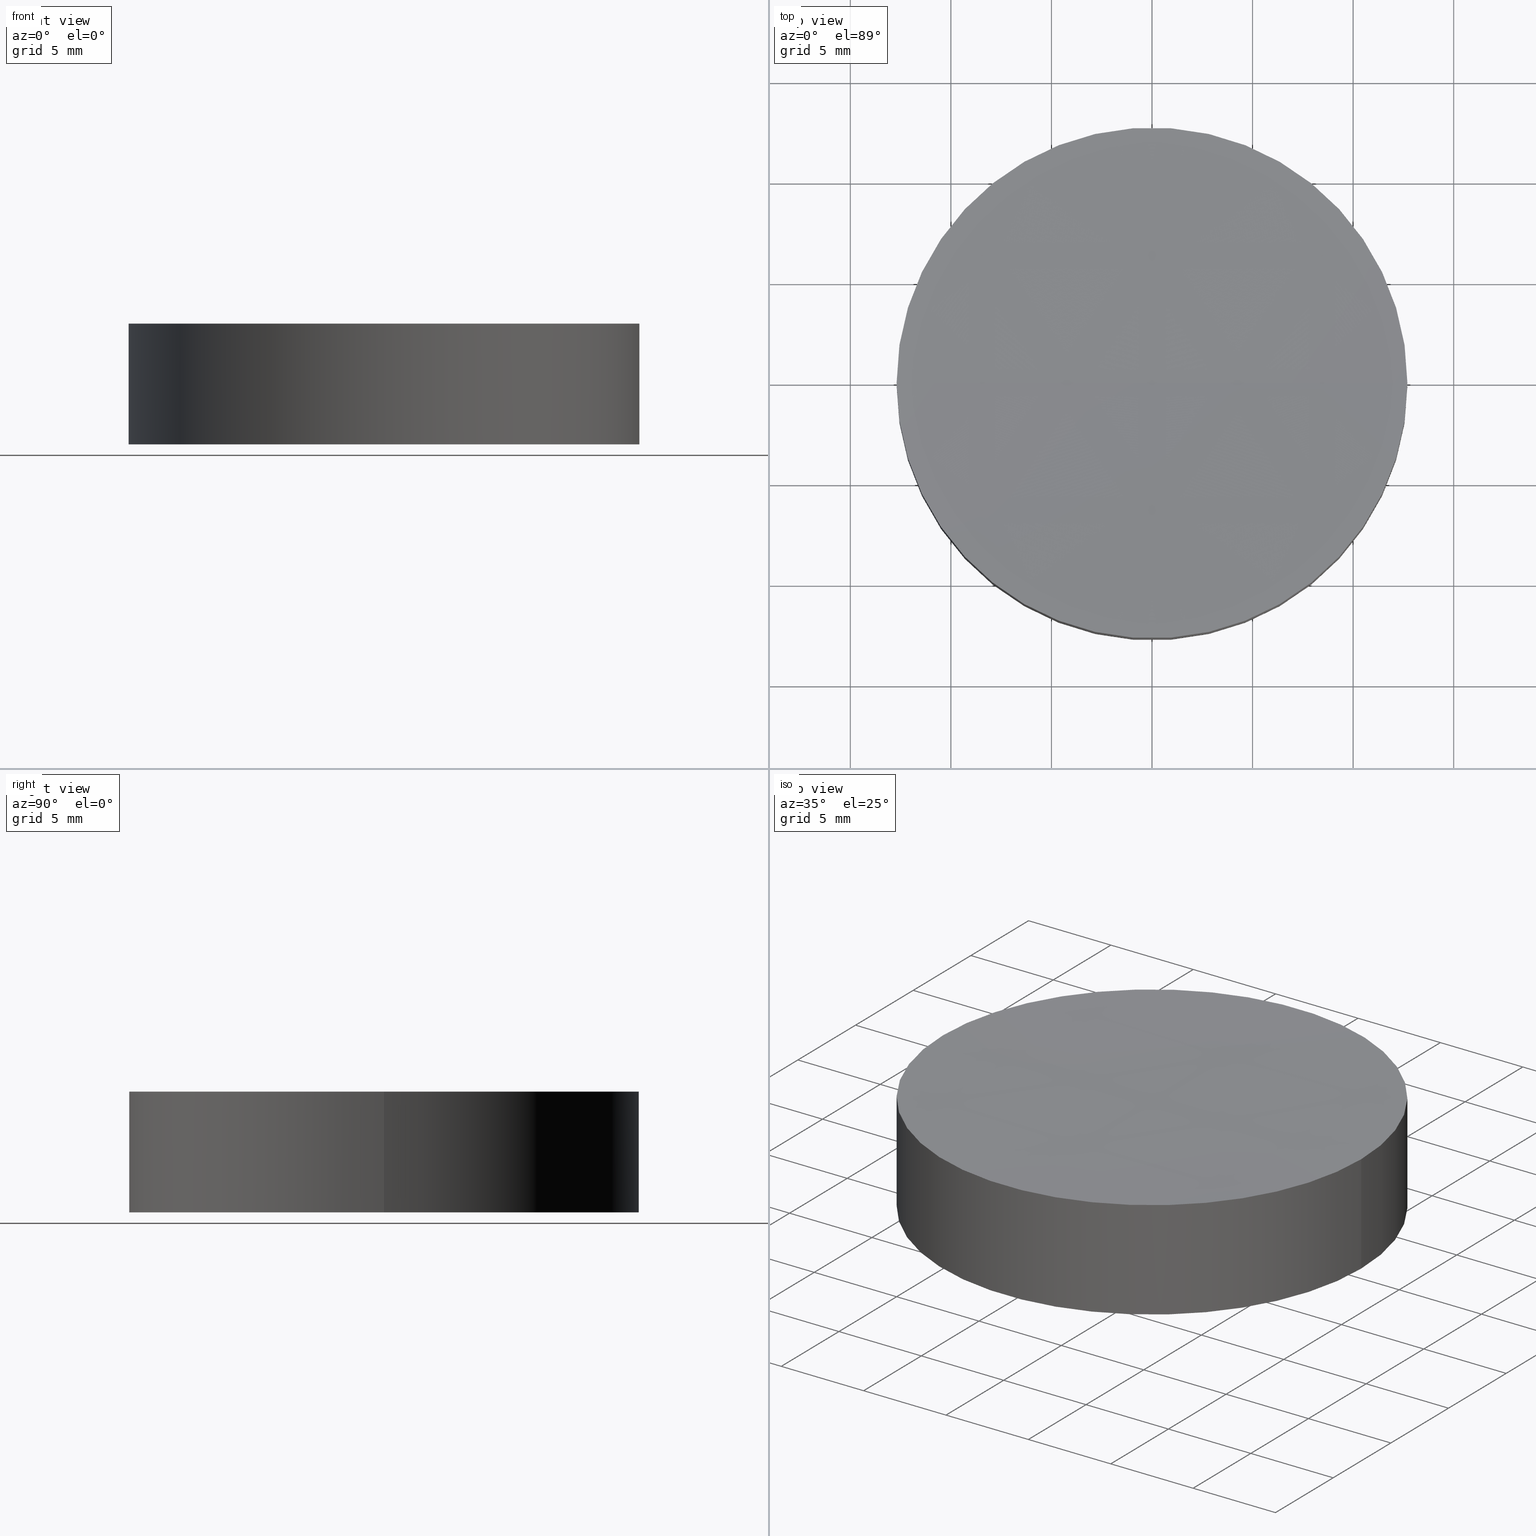
[diagram: canonical four-view strip — front | top / right | iso, engineering-drawing reading convention]
A machine part, canonical four-view strip (front | top / right | iso — engineering-drawing reading convention). The complete STEP part file that produces these views, byte-faithful:
ISO-10303-21;
HEADER;
FILE_DESCRIPTION (( 'STEP AP203' ),
    '1' );
FILE_NAME ('010-0211E_N-BK7_PCV_window.STEP',
    '2021-02-25T11:14:06',
    ( '' ),
    ( '' ),
    'SwSTEP 2.0',
    'SolidWorks 2019',
    '' );
FILE_SCHEMA (( 'CONFIG_CONTROL_DESIGN' ));
ENDSEC;

DATA;
#1 = VECTOR ( 'NONE', #40, 1000.000000000000000 ) ;
#2 = ORIENTED_EDGE ( 'NONE', *, *, #116, .F. ) ;
#3 = EDGE_LOOP ( 'NONE', ( #187, #109, #131, #34 ) ) ;
#4 = EDGE_CURVE ( 'NONE', #97, #45, #135, .T. ) ;
#5 = FACE_OUTER_BOUND ( 'NONE', #110, .T. ) ;
#6 = CARTESIAN_POINT ( 'NONE',  ( -12.69999999999999929, 0.000000000000000000, 0.000000000000000000 ) ) ;
#7 = CC_DESIGN_APPROVAL ( #161, ( #122 ) ) ;
#8 = FACE_OUTER_BOUND ( 'NONE', #3, .T. ) ;
#9 = CARTESIAN_POINT ( 'NONE',  ( 4.510281037539698445E-14, 0.000000000000000000, 6.000000000000005329 ) ) ;
#10 = APPROVAL_ROLE ( '' ) ;
#11 = DESIGN_CONTEXT ( 'detailed design', #54, 'design' ) ;
#12 = PERSON_AND_ORGANIZATION_ROLE ( 'design_supplier' ) ;
#13 = CALENDAR_DATE ( 2021, 25, 2 ) ;
#14 = SHAPE_DEFINITION_REPRESENTATION ( #120, #58 ) ;
#15 = VECTOR ( 'NONE', #146, 1000.000000000000000 ) ;
#16 =( GEOMETRIC_REPRESENTATION_CONTEXT ( 3 ) GLOBAL_UNCERTAINTY_ASSIGNED_CONTEXT ( ( #39 ) ) GLOBAL_UNIT_ASSIGNED_CONTEXT ( ( #51, #138, #198 ) ) REPRESENTATION_CONTEXT ( 'NONE', 'WORKASPACE' ) );
#17 = EDGE_LOOP ( 'NONE', ( #144, #2, #80 ) ) ;
#18 = EDGE_LOOP ( 'NONE', ( #66, #188, #83, #191 ) ) ;
#19 = CIRCLE ( 'NONE', #74, 12.69999999999978257 ) ;
#20 = ORIENTED_EDGE ( 'NONE', *, *, #52, .F. ) ;
#21 = LINE ( 'NONE', #133, #1 ) ;
#22 = DIRECTION ( 'NONE',  ( 0.000000000000000000, 0.000000000000000000, 1.000000000000000000 ) ) ;
#23 = LOCAL_TIME ( 13, 14, 6.000000000000000000, #182 ) ;
#24 = CARTESIAN_POINT ( 'NONE',  ( 0.000000000000000000, 0.000000000000000000, 6.000000000000000000 ) ) ;
#25 = DIRECTION ( 'NONE',  ( 0.000000000000000000, 1.000000000000000000, -0.000000000000000000 ) ) ;
#26 = APPROVAL_DATE_TIME ( #180, #161 ) ;
#27 = PERSON_AND_ORGANIZATION_ROLE ( 'creator' ) ;
#28 = CC_DESIGN_PERSON_AND_ORGANIZATION_ASSIGNMENT ( #90, #12, ( #33 ) ) ;
#29 = PERSON_AND_ORGANIZATION ( #141, #183 ) ;
#30 = PERSON_AND_ORGANIZATION ( #141, #183 ) ;
#31 = CLOSED_SHELL ( 'NONE', ( #164, #156, #41, #57, #137 ) ) ;
#32 = EDGE_LOOP ( 'NONE', ( #95, #173, #20 ) ) ;
#33 = PRODUCT_DEFINITION_FORMATION_WITH_SPECIFIED_SOURCE ( 'ANY', '', #181, .NOT_KNOWN. ) ;
#34 = ORIENTED_EDGE ( 'NONE', *, *, #185, .T. ) ;
#35 = DIRECTION ( 'NONE',  ( 1.000000000000000000, 0.000000000000000000, 0.000000000000000000 ) ) ;
#36 = AXIS2_PLACEMENT_3D ( 'NONE', #134, #150, #47 ) ;
#37 = DIRECTION ( 'NONE',  ( 0.000000000000000000, 0.000000000000000000, 1.000000000000000000 ) ) ;
#38 = DIRECTION ( 'NONE',  ( 1.000000000000000000, 0.000000000000000000, 0.000000000000000000 ) ) ;
#39 = UNCERTAINTY_MEASURE_WITH_UNIT (LENGTH_MEASURE( 1.000000000000000082E-05 ), #51, 'distance_accuracy_value', 'NONE');
#40 = DIRECTION ( 'NONE',  ( -0.000000000000000000, -0.000000000000000000, -1.000000000000000000 ) ) ;
#41 = ADVANCED_FACE ( 'NONE', ( #8 ), #72, .T. ) ;
#42 = PERSON_AND_ORGANIZATION ( #141, #183 ) ;
#43 = APPROVAL_DATE_TIME ( #75, #129 ) ;
#44 = CALENDAR_DATE ( 2021, 25, 2 ) ;
#45 = VERTEX_POINT ( 'NONE', #147 ) ;
#46 = VERTEX_POINT ( 'NONE', #6 ) ;
#47 = DIRECTION ( 'NONE',  ( 1.000000000000000000, 0.000000000000000000, 0.000000000000000000 ) ) ;
#48 = DIRECTION ( 'NONE',  ( -0.000000000000000000, -0.000000000000000000, -1.000000000000000000 ) ) ;
#49 = AXIS2_PLACEMENT_3D ( 'NONE', #86, #25, #71 ) ;
#50 = CC_DESIGN_APPROVAL ( #111, ( #85 ) ) ;
#51 =( LENGTH_UNIT ( ) NAMED_UNIT ( * ) SI_UNIT ( .MILLI., .METRE. ) );
#52 = EDGE_CURVE ( 'NONE', #97, #143, #189, .T. ) ;
#53 = DIRECTION ( 'NONE',  ( -0.000000000000000000, -0.000000000000000000, -1.000000000000000000 ) ) ;
#54 = APPLICATION_CONTEXT ( 'configuration controlled 3d designs of mechanical parts and assemblies' ) ;
#55 = DIRECTION ( 'NONE',  ( 1.000000000000000000, 0.000000000000000000, 0.000000000000000000 ) ) ;
#56 = AXIS2_PLACEMENT_3D ( 'NONE', #24, #117, #84 ) ;
#57 = ADVANCED_FACE ( 'NONE', ( #5 ), #100, .F. ) ;
#58 = ADVANCED_BREP_SHAPE_REPRESENTATION ( '010-0211E_N-BK7_PCV_window', ( #87, #70 ), #16 ) ;
#59 = DIRECTION ( 'NONE',  ( 1.000000000000000000, 0.000000000000000000, 0.000000000000000000 ) ) ;
#60 = APPROVAL_PERSON_ORGANIZATION ( #197, #129, #10 ) ;
#61 = CARTESIAN_POINT ( 'NONE',  ( 0.000000000000000000, 0.000000000000000000, 0.000000000000000000 ) ) ;
#62 = PERSON_AND_ORGANIZATION_ROLE ( 'classification_officer' ) ;
#63 = CC_DESIGN_DATE_AND_TIME_ASSIGNMENT ( #93, #154, ( #85 ) ) ;
#64 = EDGE_CURVE ( 'NONE', #45, #46, #170, .T. ) ;
#65 = CIRCLE ( 'NONE', #119, 12.69999999999999929 ) ;
#66 = ORIENTED_EDGE ( 'NONE', *, *, #151, .T. ) ;
#67 = AXIS2_PLACEMENT_3D ( 'NONE', #9, #68, #35 ) ;
#68 = DIRECTION ( 'NONE',  ( -0.000000000000000000, -0.000000000000000000, -1.000000000000000000 ) ) ;
#69 = FACE_OUTER_BOUND ( 'NONE', #32, .T. ) ;
#70 = AXIS2_PLACEMENT_3D ( 'NONE', #61, #107, #59 ) ;
#71 = DIRECTION ( 'NONE',  ( 0.000000000000000000, 0.000000000000000000, 1.000000000000000000 ) ) ;
#72 = CYLINDRICAL_SURFACE ( 'NONE', #56, 12.69999999999999929 ) ;
#73 = DIRECTION ( 'NONE',  ( 1.000000000000000000, 0.000000000000000000, -0.000000000000000000 ) ) ;
#74 = AXIS2_PLACEMENT_3D ( 'NONE', #115, #53, #38 ) ;
#75 = DATE_AND_TIME ( #124, #171 ) ;
#76 = SECURITY_CLASSIFICATION_LEVEL ( 'unclassified' ) ;
#77 = APPROVAL_ROLE ( '' ) ;
#78 = EDGE_CURVE ( 'NONE', #158, #143, #167, .T. ) ;
#79 = AXIS2_PLACEMENT_3D ( 'NONE', #159, #82, #145 ) ;
#80 = ORIENTED_EDGE ( 'NONE', *, *, #52, .T. ) ;
#81 = ORIENTED_EDGE ( 'NONE', *, *, #64, .F. ) ;
#82 = DIRECTION ( 'NONE',  ( 0.000000000000000000, -1.000000000000000000, -0.000000000000000000 ) ) ;
#83 = ORIENTED_EDGE ( 'NONE', *, *, #64, .T. ) ;
#84 = DIRECTION ( 'NONE',  ( -1.000000000000000000, 0.000000000000000000, 0.000000000000000000 ) ) ;
#85 = SECURITY_CLASSIFICATION ( '', '', #76 ) ;
#86 = CARTESIAN_POINT ( 'NONE',  ( 4.510281037539698445E-14, 0.000000000000000000, 355.7695098203958537 ) ) ;
#87 = MANIFOLD_SOLID_BREP ( 'Cut-Revolve1', #31 ) ;
#88 = DATE_TIME_ROLE ( 'creation_date' ) ;
#89 = LOCAL_TIME ( 13, 14, 6.000000000000000000, #169 ) ;
#90 = PERSON_AND_ORGANIZATION ( #141, #183 ) ;
#91 = CC_DESIGN_PERSON_AND_ORGANIZATION_ASSIGNMENT ( #30, #155, ( #181 ) ) ;
#92 = CALENDAR_DATE ( 2021, 25, 2 ) ;
#93 = DATE_AND_TIME ( #13, #89 ) ;
#94 = COORDINATED_UNIVERSAL_TIME_OFFSET ( 2, 0, .AHEAD. ) ;
#95 = ORIENTED_EDGE ( 'NONE', *, *, #151, .F. ) ;
#96 = APPROVAL_PERSON_ORGANIZATION ( #136, #161, #165 ) ;
#97 = VERTEX_POINT ( 'NONE', #98 ) ;
#98 = CARTESIAN_POINT ( 'NONE',  ( 12.69999999999982698, 1.555301434917128177E-15, 6.000000000000005329 ) ) ;
#99 = CARTESIAN_POINT ( 'NONE',  ( 0.000000000000000000, 0.000000000000000000, 0.000000000000000000 ) ) ;
#100 = PLANE ( 'NONE',  #113 ) ;
#101 = FACE_OUTER_BOUND ( 'NONE', #18, .T. ) ;
#102 = AXIS2_PLACEMENT_3D ( 'NONE', #177, #112, #114 ) ;
#103 = PRODUCT_RELATED_PRODUCT_CATEGORY ( 'detail', '', ( #181 ) ) ;
#104 = PERSON_AND_ORGANIZATION_ROLE ( 'creator' ) ;
#105 = PERSON_AND_ORGANIZATION ( #141, #183 ) ;
#106 = APPROVAL_DATE_TIME ( #127, #111 ) ;
#107 = DIRECTION ( 'NONE',  ( 0.000000000000000000, 0.000000000000000000, 1.000000000000000000 ) ) ;
#108 = CIRCLE ( 'NONE', #67, 12.69999999999978257 ) ;
#109 = ORIENTED_EDGE ( 'NONE', *, *, #116, .T. ) ;
#110 = EDGE_LOOP ( 'NONE', ( #176, #81 ) ) ;
#111 = APPROVAL ( #200, 'UNSPECIFIED' ) ;
#112 = DIRECTION ( 'NONE',  ( 1.224646799147353207E-16, -1.000000000000000000, 0.000000000000000000 ) ) ;
#113 = AXIS2_PLACEMENT_3D ( 'NONE', #174, #37, #73 ) ;
#114 = DIRECTION ( 'NONE',  ( 1.000000000000000000, 1.224646799147353207E-16, 0.000000000000000000 ) ) ;
#115 = CARTESIAN_POINT ( 'NONE',  ( 4.510281037539698445E-14, 0.000000000000000000, 6.000000000000005329 ) ) ;
#116 = EDGE_CURVE ( 'NONE', #97, #158, #108, .T. ) ;
#117 = DIRECTION ( 'NONE',  ( -0.000000000000000000, -0.000000000000000000, -1.000000000000000000 ) ) ;
#118 = SPHERICAL_SURFACE ( 'NONE', #79, 350.0000000000000000 ) ;
#119 = AXIS2_PLACEMENT_3D ( 'NONE', #99, #22, #55 ) ;
#120 = PRODUCT_DEFINITION_SHAPE ( 'NONE', 'NONE',  #122 ) ;
#121 = MECHANICAL_CONTEXT ( 'NONE', #194, 'mechanical' ) ;
#122 = PRODUCT_DEFINITION ( 'UNKNOWN', '', #33, #11 ) ;
#123 = APPROVAL_STATUS ( 'not_yet_approved' ) ;
#124 = CALENDAR_DATE ( 2021, 25, 2 ) ;
#125 = LOCAL_TIME ( 13, 14, 6.000000000000000000, #94 ) ;
#126 = COORDINATED_UNIVERSAL_TIME_OFFSET ( 2, 0, .AHEAD. ) ;
#127 = DATE_AND_TIME ( #44, #130 ) ;
#128 = CC_DESIGN_DATE_AND_TIME_ASSIGNMENT ( #140, #88, ( #122 ) ) ;
#129 = APPROVAL ( #201, 'UNSPECIFIED' ) ;
#130 = LOCAL_TIME ( 13, 14, 6.000000000000000000, #126 ) ;
#131 = ORIENTED_EDGE ( 'NONE', *, *, #199, .T. ) ;
#132 = CARTESIAN_POINT ( 'NONE',  ( 6.653412936047567325E-14, 0.000000000000000000, 5.769509820395867905 ) ) ;
#133 = CARTESIAN_POINT ( 'NONE',  ( -12.69999999999999929, 0.000000000000000000, 6.000000000000000000 ) ) ;
#134 = CARTESIAN_POINT ( 'NONE',  ( 0.000000000000000000, 0.000000000000000000, 0.000000000000000000 ) ) ;
#135 = LINE ( 'NONE', #192, #15 ) ;
#136 = PERSON_AND_ORGANIZATION ( #141, #183 ) ;
#137 = ADVANCED_FACE ( 'NONE', ( #195 ), #118, .F. ) ;
#138 =( NAMED_UNIT ( * ) PLANE_ANGLE_UNIT ( ) SI_UNIT ( $, .RADIAN. ) );
#139 = PERSON_AND_ORGANIZATION ( #141, #183 ) ;
#140 = DATE_AND_TIME ( #92, #125 ) ;
#141 = PERSON ( 'UNSPECIFIED', 'UNSPECIFIED', 'UNSPECIFIED', ('UNSPECIFIED'), ('UNSPECIFIED'), ('UNSPECIFIED') ) ;
#142 = CC_DESIGN_PERSON_AND_ORGANIZATION_ASSIGNMENT ( #105, #27, ( #33 ) ) ;
#143 = VERTEX_POINT ( 'NONE', #132 ) ;
#144 = ORIENTED_EDGE ( 'NONE', *, *, #78, .F. ) ;
#145 = DIRECTION ( 'NONE',  ( 1.000000000000000000, 0.000000000000000000, 0.000000000000000000 ) ) ;
#146 = DIRECTION ( 'NONE',  ( -0.000000000000000000, -0.000000000000000000, -1.000000000000000000 ) ) ;
#147 = CARTESIAN_POINT ( 'NONE',  ( 12.69999999999999929, 1.555301434917138433E-15, 0.000000000000000000 ) ) ;
#148 = CC_DESIGN_PERSON_AND_ORGANIZATION_ASSIGNMENT ( #139, #62, ( #85 ) ) ;
#149 = DIRECTION ( 'NONE',  ( 0.000000000000000000, -1.000000000000000000, -0.000000000000000000 ) ) ;
#150 = DIRECTION ( 'NONE',  ( 0.000000000000000000, 0.000000000000000000, 1.000000000000000000 ) ) ;
#151 = EDGE_CURVE ( 'NONE', #158, #97, #19, .T. ) ;
#152 = APPLICATION_PROTOCOL_DEFINITION ( 'international standard', 'config_control_design', 1994, #194 ) ;
#153 = CALENDAR_DATE ( 2021, 25, 2 ) ;
#154 = DATE_TIME_ROLE ( 'classification_date' ) ;
#155 = PERSON_AND_ORGANIZATION_ROLE ( 'design_owner' ) ;
#156 = ADVANCED_FACE ( 'NONE', ( #101 ), #193, .T. ) ;
#157 = CC_DESIGN_PERSON_AND_ORGANIZATION_ASSIGNMENT ( #42, #104, ( #122 ) ) ;
#158 = VERTEX_POINT ( 'NONE', #175 ) ;
#159 = CARTESIAN_POINT ( 'NONE',  ( 4.510281037539698445E-14, 0.000000000000000000, 355.7695098203958537 ) ) ;
#160 = SPHERICAL_SURFACE ( 'NONE', #178, 350.0000000000000000 ) ;
#161 = APPROVAL ( #123, 'UNSPECIFIED' ) ;
#162 = CARTESIAN_POINT ( 'NONE',  ( 4.510281037539698445E-14, 0.000000000000000000, 355.7695098203958537 ) ) ;
#163 = CARTESIAN_POINT ( 'NONE',  ( 0.000000000000000000, 0.000000000000000000, 6.000000000000000000 ) ) ;
#164 = ADVANCED_FACE ( 'NONE', ( #69 ), #160, .F. ) ;
#165 = APPROVAL_ROLE ( '' ) ;
#166 = COORDINATED_UNIVERSAL_TIME_OFFSET ( 2, 0, .AHEAD. ) ;
#167 = CIRCLE ( 'NONE', #102, 350.0000000000000000 ) ;
#168 = CC_DESIGN_SECURITY_CLASSIFICATION ( #85, ( #33 ) ) ;
#169 = COORDINATED_UNIVERSAL_TIME_OFFSET ( 2, 0, .AHEAD. ) ;
#170 = CIRCLE ( 'NONE', #36, 12.69999999999999929 ) ;
#171 = LOCAL_TIME ( 13, 14, 6.000000000000000000, #166 ) ;
#172 = CC_DESIGN_APPROVAL ( #129, ( #33 ) ) ;
#173 = ORIENTED_EDGE ( 'NONE', *, *, #78, .T. ) ;
#174 = CARTESIAN_POINT ( 'NONE',  ( 0.000000000000000000, 0.000000000000000000, 0.000000000000000000 ) ) ;
#175 = CARTESIAN_POINT ( 'NONE',  ( -12.69999999999973817, 0.000000000000000000, 6.000000000000005329 ) ) ;
#176 = ORIENTED_EDGE ( 'NONE', *, *, #185, .F. ) ;
#177 = CARTESIAN_POINT ( 'NONE',  ( 4.510281037539698445E-14, 0.000000000000000000, 355.7695098203958537 ) ) ;
#178 = AXIS2_PLACEMENT_3D ( 'NONE', #162, #149, #196 ) ;
#179 = DIRECTION ( 'NONE',  ( -1.000000000000000000, 0.000000000000000000, 0.000000000000000000 ) ) ;
#180 = DATE_AND_TIME ( #153, #23 ) ;
#181 = PRODUCT ( '010-0211E_N-BK7_PCV_window', '010-0211E_N-BK7_PCV_window', '', ( #121 ) ) ;
#182 = COORDINATED_UNIVERSAL_TIME_OFFSET ( 2, 0, .AHEAD. ) ;
#183 = ORGANIZATION ( 'UNSPECIFIED', 'UNSPECIFIED', '' ) ;
#184 = APPLICATION_PROTOCOL_DEFINITION ( 'international standard', 'config_control_design', 1994, #54 ) ;
#185 = EDGE_CURVE ( 'NONE', #46, #45, #65, .T. ) ;
#186 = AXIS2_PLACEMENT_3D ( 'NONE', #163, #48, #179 ) ;
#187 = ORIENTED_EDGE ( 'NONE', *, *, #4, .F. ) ;
#188 = ORIENTED_EDGE ( 'NONE', *, *, #4, .T. ) ;
#189 = CIRCLE ( 'NONE', #49, 349.9999999999999432 ) ;
#190 = APPROVAL_PERSON_ORGANIZATION ( #29, #111, #77 ) ;
#191 = ORIENTED_EDGE ( 'NONE', *, *, #199, .F. ) ;
#192 = CARTESIAN_POINT ( 'NONE',  ( 12.69999999999999929, 1.555301434917138433E-15, 6.000000000000000000 ) ) ;
#193 = CYLINDRICAL_SURFACE ( 'NONE', #186, 12.69999999999999929 ) ;
#194 = APPLICATION_CONTEXT ( 'configuration controlled 3d designs of mechanical parts and assemblies' ) ;
#195 = FACE_OUTER_BOUND ( 'NONE', #17, .T. ) ;
#196 = DIRECTION ( 'NONE',  ( 1.000000000000000000, 0.000000000000000000, 0.000000000000000000 ) ) ;
#197 = PERSON_AND_ORGANIZATION ( #141, #183 ) ;
#198 =( NAMED_UNIT ( * ) SI_UNIT ( $, .STERADIAN. ) SOLID_ANGLE_UNIT ( ) );
#199 = EDGE_CURVE ( 'NONE', #158, #46, #21, .T. ) ;
#200 = APPROVAL_STATUS ( 'not_yet_approved' ) ;
#201 = APPROVAL_STATUS ( 'not_yet_approved' ) ;
ENDSEC;
END-ISO-10303-21;
